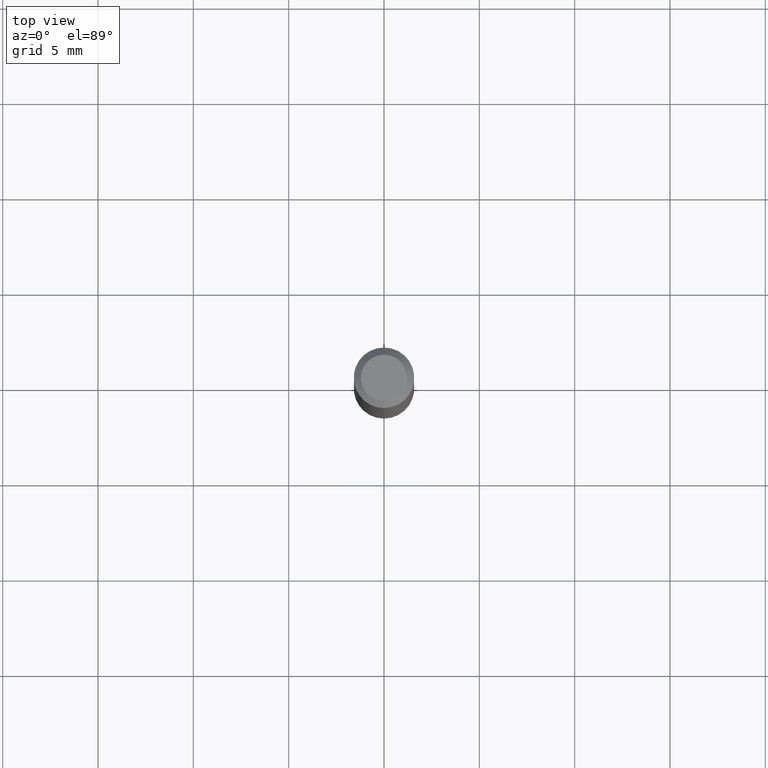
[diagram: clean part render]
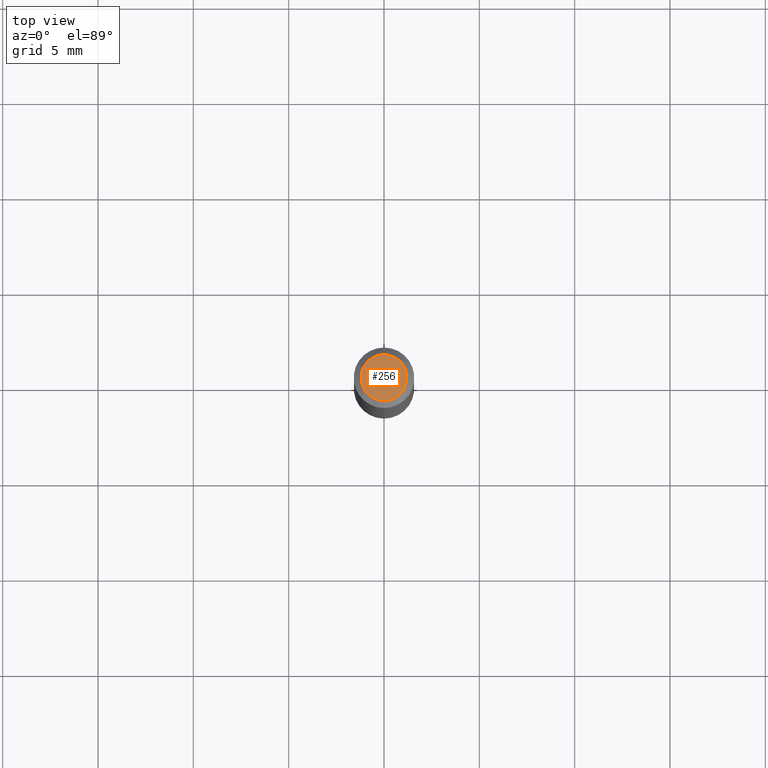
[diagram: same view with one face highlighted and labeled with its STEP entity id]
A machine part, top view. The second image highlights one B-rep face of the part: STEP entity #256.
In plain terms, the highlighted planar face has unit normal (0, -0, -1).
Its self-contained STEP definition (entity closure, byte-faithful):
#92 = CARTESIAN_POINT ( 'NONE',  ( 3.840629472727447874E-16, 0.04749999999999999362, 7.364327909283748346E-17 ) ) ;
#95 = EDGE_LOOP ( 'NONE', ( #358, #282 ) ) ;
#117 = EDGE_CURVE ( 'NONE', #479, #451, #253, .T. ) ;
#118 = CARTESIAN_POINT ( 'NONE',  ( -5.856617967785148099E-45, 8.361717803097652649E-31, 2.394888364570195200E-16 ) ) ;
#121 = DIRECTION ( 'NONE',  ( -2.445465957590144447E-29, 3.491485418193306478E-15, 1.000000000000000000 ) ) ;
#190 = CIRCLE ( 'NONE', #211, 0.04749999999999999362 ) ;
#211 = AXIS2_PLACEMENT_3D ( 'NONE', #118, #121, #241 ) ;
#219 = AXIS2_PLACEMENT_3D ( 'NONE', #257, #377, #332 ) ;
#241 = DIRECTION ( 'NONE',  ( -6.982962677686266711E-15, -1.000000000000000000, 3.491485418193306872E-15 ) ) ;
#253 = CIRCLE ( 'NONE', #219, 0.04749999999999999362 ) ;
#256 = ADVANCED_FACE ( 'NONE', ( #344 ), #345, .F. ) ;
#257 = CARTESIAN_POINT ( 'NONE',  ( -5.856617967785148099E-45, 8.361717803097652649E-31, 2.394888364570195200E-16 ) ) ;
#282 = ORIENTED_EDGE ( 'NONE', *, *, #117, .T. ) ;
#332 = DIRECTION ( 'NONE',  ( -6.982962677686266711E-15, -1.000000000000000000, 3.491485418193306872E-15 ) ) ;
#344 = FACE_OUTER_BOUND ( 'NONE', #95, .T. ) ;
#345 = PLANE ( 'NONE',  #437 ) ;
#348 = CARTESIAN_POINT ( 'NONE',  ( 3.316907271900976096E-16, 0.04749999999999999362, -4.610113913567225187E-17 ) ) ;
#353 = EDGE_CURVE ( 'NONE', #451, #479, #190, .T. ) ;
#358 = ORIENTED_EDGE ( 'NONE', *, *, #353, .T. ) ;
#377 = DIRECTION ( 'NONE',  ( -2.445465957590144447E-29, 3.491485418193306478E-15, 1.000000000000000000 ) ) ;
#385 = DIRECTION ( 'NONE',  ( 6.982962677686265922E-15, 1.000000000000000000, -3.491485418193306478E-15 ) ) ;
#417 = CARTESIAN_POINT ( 'NONE',  ( -3.773273898774340269E-16, -0.04749999999999999362, 4.053343938212016181E-16 ) ) ;
#437 = AXIS2_PLACEMENT_3D ( 'NONE', #348, #506, #385 ) ;
#451 = VERTEX_POINT ( 'NONE', #92 ) ;
#479 = VERTEX_POINT ( 'NONE', #417 ) ;
#506 = DIRECTION ( 'NONE',  ( 2.445465957590143886E-29, -3.491485418193306478E-15, -1.000000000000000000 ) ) ;